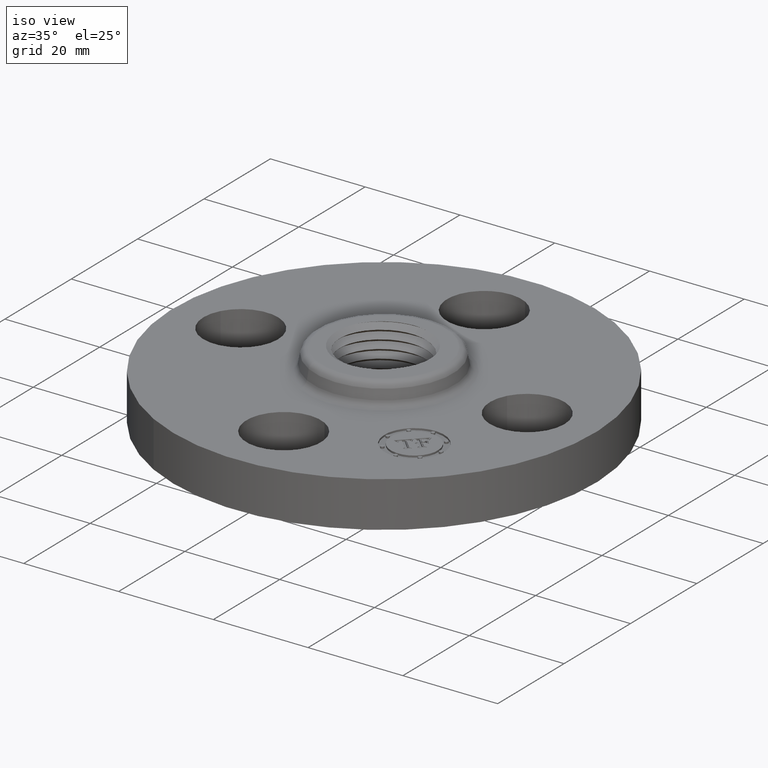
[diagram: clean part render]
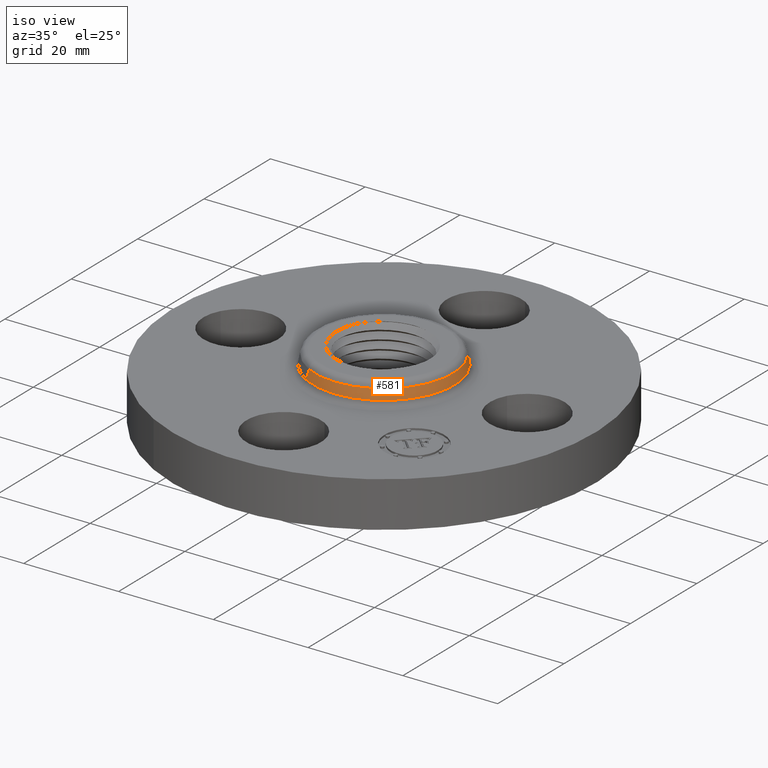
[diagram: same view with one face highlighted and labeled with its STEP entity id]
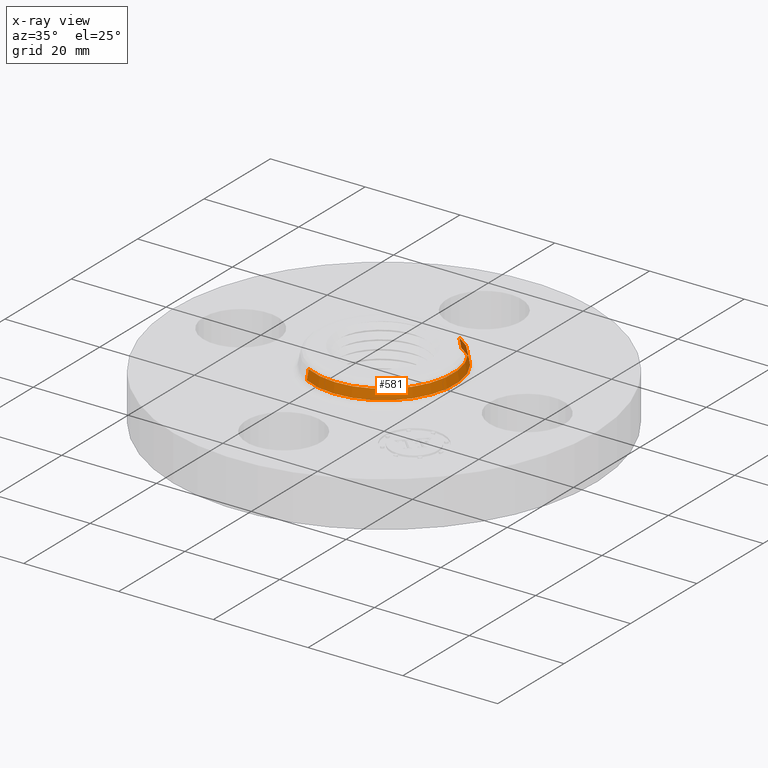
[diagram: x-ray of the same camera — body ghosted, the highlighted face saturated]
A machine part, iso view. The second image highlights one B-rep face of the part: STEP entity #581.
The next image is the same camera in x-ray: the body ghosted, the highlighted face saturated — about 0% of this face is hidden behind the body in this view.
In plain terms, the highlighted conical surface has half-angle 10 deg.
Its self-contained STEP definition (entity closure, byte-faithful):
#529=AXIS2_PLACEMENT_3D('Circle Axis2P3D',#527,#528,$) ;
#542=AXIS2_PLACEMENT_3D('Cone Axis2P3D',#539,#540,#541) ;
#572=AXIS2_PLACEMENT_3D('Circle Axis2P3D',#570,#571,$) ;
#505=CARTESIAN_POINT('Vertex',(-0.274233148773,-0.501980411715,0.510418890662)) ;
#507=CARTESIAN_POINT('Vertex',(0.274233148773,0.501980411715,0.510418890662)) ;
#527=CARTESIAN_POINT('Axis2P3D Location',(0.,0.,0.510418890662)) ;
#539=CARTESIAN_POINT('Axis2P3D Location',(0.,0.,0.510418890662)) ;
#548=CARTESIAN_POINT('Vertex',(-0.281066823783,-0.514489369916,0.429581109342)) ;
#550=CARTESIAN_POINT('Vertex',(0.281066823783,0.514489369916,0.429581109342)) ;
#553=CARTESIAN_POINT('Line Origine',(-0.277649986278,-0.508234890815,0.470000000002)) ;
#558=CARTESIAN_POINT('Line Origine',(0.277649986278,0.508234890815,0.470000000002)) ;
#570=CARTESIAN_POINT('Axis2P3D Location',(0.,0.,0.429581109342)) ;
#528=DIRECTION('Axis2P3D Direction',(0.,0.,-0.0393700787402)) ;
#540=DIRECTION('Axis2P3D Direction',(0.,0.,-0.0393700787402)) ;
#541=DIRECTION('Axis2P3D XDirection',(0.0188750212049,0.0345504945626,0.)) ;
#554=DIRECTION('Vector Direction',(-0.00327761303565,-0.00599963041829,-0.03877195878)) ;
#559=DIRECTION('Vector Direction',(0.00327761303565,0.00599963041829,-0.03877195878)) ;
#571=DIRECTION('Axis2P3D Direction',(0.,0.,-0.0393700787402)) ;
#555=VECTOR('Line Direction',#554,0.0393700787402) ;
#560=VECTOR('Line Direction',#559,0.0393700787402) ;
#576=ORIENTED_EDGE('',*,*,#574,.F.) ;
#577=ORIENTED_EDGE('',*,*,#562,.T.) ;
#578=ORIENTED_EDGE('',*,*,#531,.T.) ;
#579=ORIENTED_EDGE('',*,*,#557,.F.) ;
#581=ADVANCED_FACE('PartBody',(#580),#543,.T.) ;
#530=CIRCLE('generated circle',#529,0.572003630785) ;
#573=CIRCLE('generated circle',#572,0.586257512692) ;
#543=CONICAL_SURFACE('Cone',#542,0.572003630785,0.174532925199) ;
#531=EDGE_CURVE('',#508,#506,#530,.T.) ;
#557=EDGE_CURVE('',#549,#506,#556,.F.) ;
#562=EDGE_CURVE('',#551,#508,#561,.F.) ;
#574=EDGE_CURVE('',#551,#549,#573,.T.) ;
#575=EDGE_LOOP('',(#576,#577,#578,#579)) ;
#580=FACE_OUTER_BOUND('',#575,.T.) ;
#556=LINE('Line',#553,#555) ;
#561=LINE('Line',#558,#560) ;
#506=VERTEX_POINT('',#505) ;
#508=VERTEX_POINT('',#507) ;
#549=VERTEX_POINT('',#548) ;
#551=VERTEX_POINT('',#550) ;